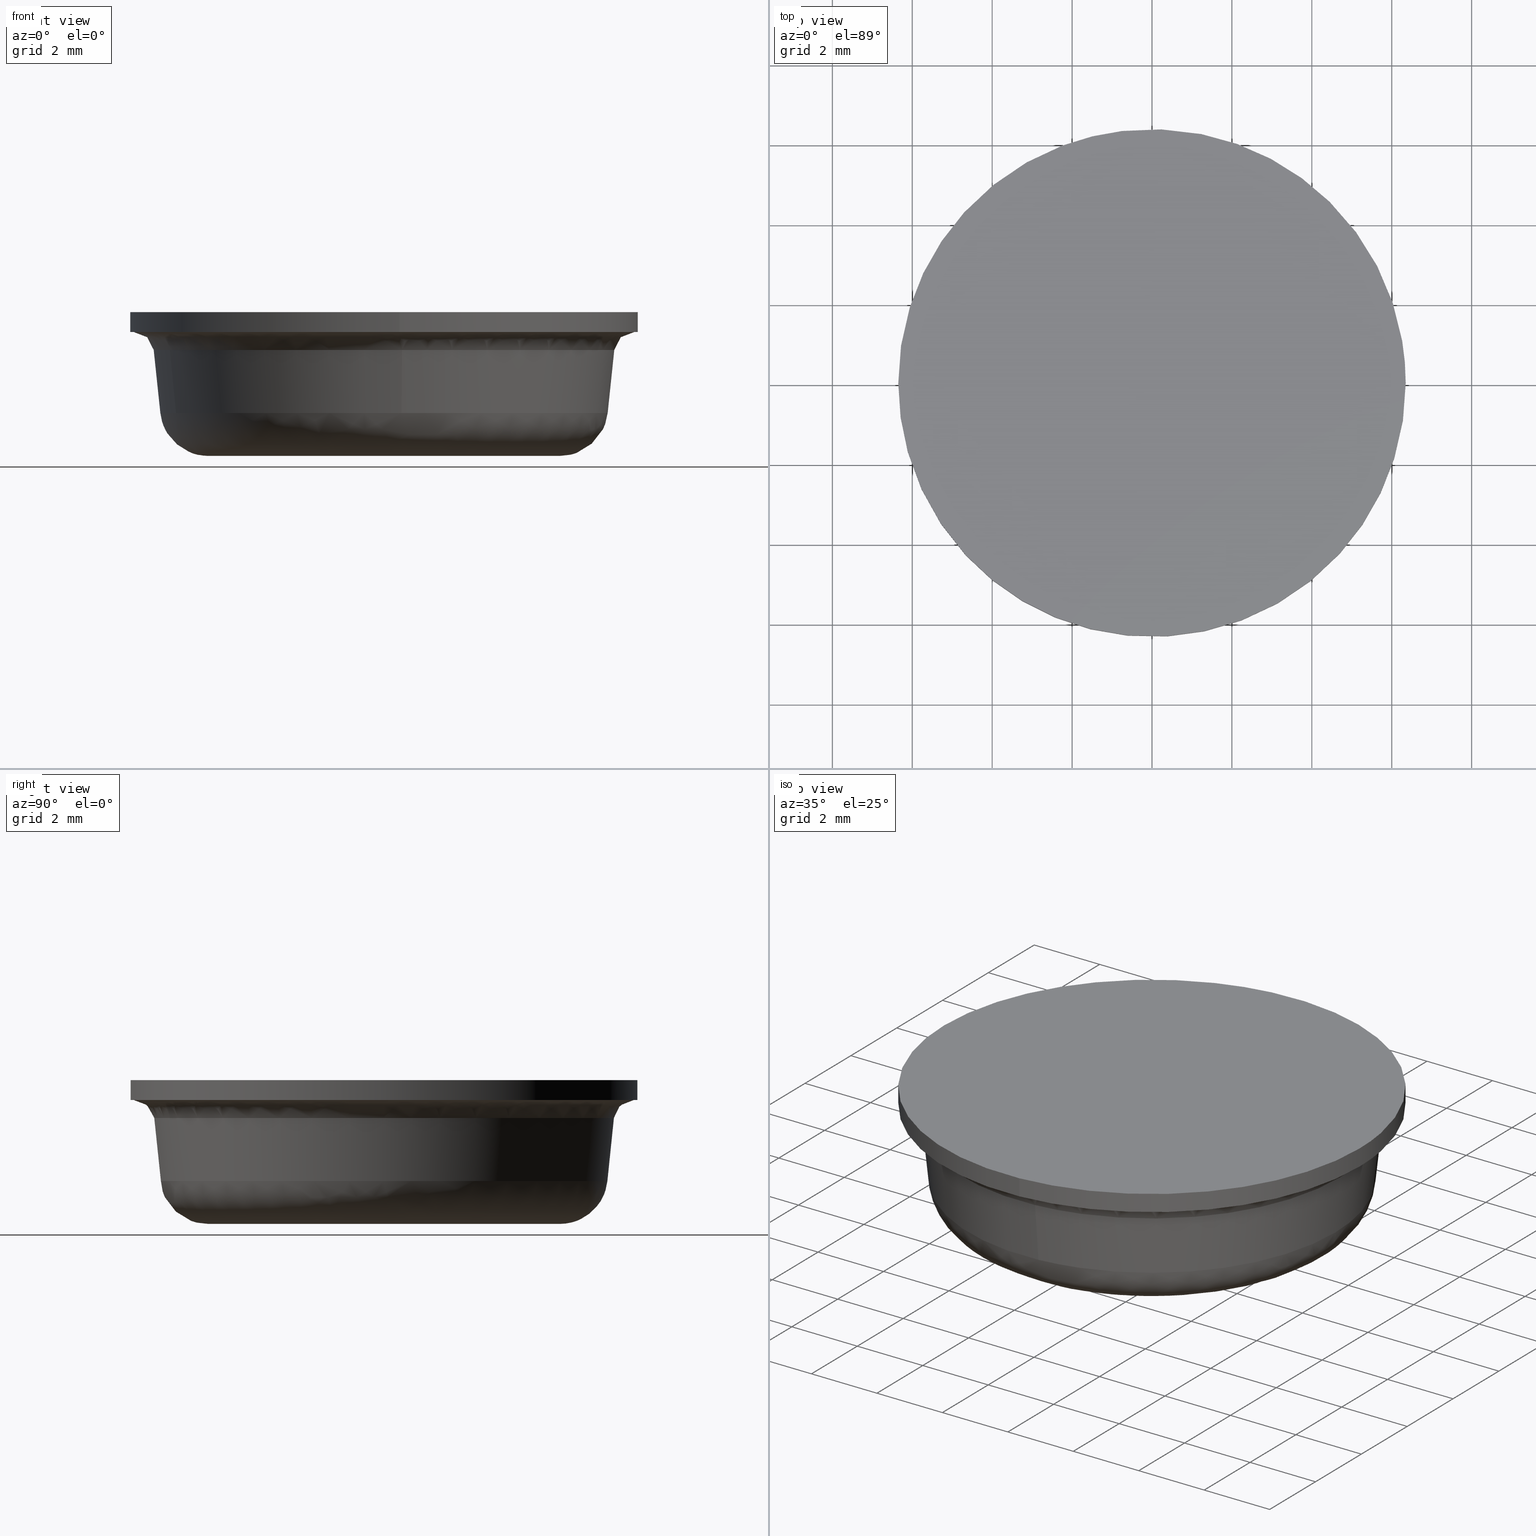
[diagram: canonical four-view strip — front | top / right | iso, engineering-drawing reading convention]
A machine part, canonical four-view strip (front | top / right | iso — engineering-drawing reading convention). The complete STEP part file that produces these views, byte-faithful:
ISO-10303-21;
HEADER;
/****************************************************************
 * Generated by software with PDE/Lib inside                    *
 * PDElib Version 4.4.1-0003, patched  Thursday August 19 11:58 *
 * International Technegroup Inc. (www.iti-oh.com)              *
 ****************************************************************/
FILE_DESCRIPTION((''),'2;1');
FILE_NAME('','2005-12-14T15:43:59',(''),(''),'','CADfix','');
FILE_SCHEMA(('AUTOMOTIVE_DESIGN'));
ENDSEC;
DATA;
#5=APPLICATION_CONTEXT('automotive design');
#6=APPLICATION_PROTOCOL_DEFINITION('Draft International Standard','automotive_design',1998,#5);
#7=PRODUCT_CONTEXT('None',#5,'mechanical');
#8=PRODUCT('rubber foot','','None',(#7));
#9=PRODUCT_RELATED_PRODUCT_CATEGORY('part','description',(#8));
#10=PRODUCT_DEFINITION_FORMATION('None','None',#8);
#11=PRODUCT_DEFINITION_CONTEXT('part definition',#5,'design');
#12=PRODUCT_DEFINITION('None','None',#10,#11);
#18=(NAMED_UNIT(*)PLANE_ANGLE_UNIT()SI_UNIT($,.RADIAN.));
#19=DIMENSIONAL_EXPONENTS(0.0,0.0,0.0,0.0,0.0,0.0,0.0);
#20=PLANE_ANGLE_MEASURE_WITH_UNIT(PLANE_ANGLE_MEASURE(0.017453292500000),#18);
#24=(CONVERSION_BASED_UNIT('DEGREE',#20)NAMED_UNIT(#19)PLANE_ANGLE_UNIT());
#28=(NAMED_UNIT(*)SI_UNIT($,.STERADIAN.)SOLID_ANGLE_UNIT());
#32=(LENGTH_UNIT()NAMED_UNIT(*)SI_UNIT(.MILLI.,.METRE.));
#34=UNCERTAINTY_MEASURE_WITH_UNIT(LENGTH_MEASURE(0.001000000000000),#32,'DISTANCE_ACCURACY_VALUE','');
#36=(GEOMETRIC_REPRESENTATION_CONTEXT(3)GLOBAL_UNCERTAINTY_ASSIGNED_CONTEXT((#34))GLOBAL_UNIT_ASSIGNED_CONTEXT((#24,#28,#32))REPRESENTATION_CONTEXT('None','None'));
#37=AXIS2_PLACEMENT_3D('',#38,#39,#40);
#38=CARTESIAN_POINT('',(0.0,0.0,0.0));
#39=DIRECTION('',(0.0,0.0,1.0));
#40=DIRECTION('',(1.0,0.0,0.0));
#41=ADVANCED_BREP_SHAPE_REPRESENTATION('',(#37,#831),#36);
#42=PRODUCT_DEFINITION_SHAPE('','',#12);
#43=SHAPE_DEFINITION_REPRESENTATION(#42,#41);
#44=CARTESIAN_POINT('',(-0.749517390070416,6.305610492409281,3.612500000000001));
#45=CARTESIAN_POINT('',(-0.569053526851158,6.327061358098645,3.612500000000001));
#46=CARTESIAN_POINT('',(-0.387658226046342,6.338155969978853,3.612500000000001));
#47=CARTESIAN_POINT('',(5.950497743932512,6.725814196025195,3.612500000000002));
#48=CARTESIAN_POINT('',(6.338155969978853,0.387658226046342,3.612500000000001));
#49=CARTESIAN_POINT('',(6.725814196025195,-5.950497743932512,3.612500000000002));
#50=CARTESIAN_POINT('',(0.387658226046342,-6.338155969978853,3.612500000000001));
#51=CARTESIAN_POINT('',(-0.749517390070416,6.305610492409281,3.087187500000001));
#52=CARTESIAN_POINT('',(-0.569053526851158,6.327061358098645,3.087187500000001));
#53=CARTESIAN_POINT('',(-0.387658226046342,6.338155969978853,3.087187500000000));
#54=CARTESIAN_POINT('',(5.950497743932512,6.725814196025195,3.087187500000000));
#55=CARTESIAN_POINT('',(6.338155969978853,0.387658226046342,3.087187500000000));
#56=CARTESIAN_POINT('',(6.725814196025195,-5.950497743932512,3.087187500000000));
#57=CARTESIAN_POINT('',(0.387658226046342,-6.338155969978853,3.087187500000000));
#65=(BOUNDED_SURFACE()B_SPLINE_SURFACE(2,1,((#44,#51),(#45,#52),(#46,#53),(#47,#54),(#48,#55),(#49,#56),(#50,#57)),.UNSPECIFIED.,.F.,.F.,.U.)B_SPLINE_SURFACE_WITH_KNOTS((3,2,2,3),(2,2),(0.0,0.420840979371065,10.941865463647680,21.462889947924289),(0.0,1.0),.UNSPECIFIED.)GEOMETRIC_REPRESENTATION_ITEM()RATIONAL_B_SPLINE_SURFACE(((0.977505800795127,0.977505800795127),(0.988284271247462,0.988284271247462),(1.0,1.0),(0.707106781186548,0.707106781186548),(1.0,1.0),(0.707106781186548,0.707106781186548),(1.0,1.0)))REPRESENTATION_ITEM('')SURFACE());
#66=CARTESIAN_POINT('',(-0.749513375861459,6.305610969556273,3.599999999999921));
#67=VERTEX_POINT('',#66);
#68=CARTESIAN_POINT('',(6.350000000000000,0.0,3.600000000000000));
#69=VERTEX_POINT('',#68);
#70=CARTESIAN_POINT('',(-0.749513375861459,6.305610969556273,3.599999999999921));
#71=CARTESIAN_POINT('',(-0.376071131466490,6.350000000000000,3.600000000000001));
#72=CARTESIAN_POINT('',(0.0,6.350000000000000,3.600000000000000));
#73=CARTESIAN_POINT('',(6.350000000000000,6.350000000000000,3.600000000000000));
#74=CARTESIAN_POINT('',(6.350000000000000,0.0,3.600000000000000));
#82=(BOUNDED_CURVE()B_SPLINE_CURVE(2,(#70,#71,#72,#73,#74),.UNSPECIFIED.,.F.,.U.)B_SPLINE_CURVE_WITH_KNOTS((3,2,3),(0.229562581104653,0.250000000000000,0.500000000000000),.UNSPECIFIED.)CURVE()GEOMETRIC_REPRESENTATION_ITEM()RATIONAL_B_SPLINE_CURVE((0.956026965066855,0.976056074382012,1.0,0.707106781186547,1.0))REPRESENTATION_ITEM(''));
#83=EDGE_CURVE('',#67,#69,#82,.T.);
#84=ORIENTED_EDGE('',*,*,#83,.T.);
#85=CARTESIAN_POINT('',(0.387655958614094,-6.338156108660137,3.599999999999948));
#86=VERTEX_POINT('',#85);
#87=CARTESIAN_POINT('',(6.350000000000000,0.0,3.600000000000000));
#88=CARTESIAN_POINT('',(6.349999999999999,-5.973485665817968,3.600000000000000));
#89=CARTESIAN_POINT('',(0.387655958614094,-6.338156108660137,3.599999999999948));
#97=(BOUNDED_CURVE()B_SPLINE_CURVE(2,(#87,#88,#89),.UNSPECIFIED.,.F.,.U.)B_SPLINE_CURVE_WITH_KNOTS((3,3),(0.500000000000000,0.739333023969413),.UNSPECIFIED.)CURVE()GEOMETRIC_REPRESENTATION_ITEM()RATIONAL_B_SPLINE_CURVE((1.0,0.719603920964966,0.976072173966902))REPRESENTATION_ITEM(''));
#98=EDGE_CURVE('',#69,#86,#97,.T.);
#99=ORIENTED_EDGE('',*,*,#98,.T.);
#100=CARTESIAN_POINT('',(0.387655985912206,-6.338156106990533,3.100000000000000));
#101=VERTEX_POINT('',#100);
#102=CARTESIAN_POINT('',(0.387655958614094,-6.338156108660137,3.599999999999948));
#103=CARTESIAN_POINT('',(0.387655985912206,-6.338156106990533,3.100000000000000));
#104=QUASI_UNIFORM_CURVE('',1,(#102,#103),.UNSPECIFIED.,.F.,.U.);
#105=EDGE_CURVE('',#86,#101,#104,.T.);
#106=ORIENTED_EDGE('',*,*,#105,.T.);
#107=CARTESIAN_POINT('',(6.350000000000000,0.0,3.100000000000000));
#108=VERTEX_POINT('',#107);
#109=CARTESIAN_POINT('',(6.350000000000000,0.0,3.100000000000000));
#110=CARTESIAN_POINT('',(6.349999999999999,-5.973485640042394,3.100000000000001));
#111=CARTESIAN_POINT('',(0.387655985912206,-6.338156106990533,3.100000000000000));
#119=(BOUNDED_CURVE()B_SPLINE_CURVE(2,(#109,#110,#111),.UNSPECIFIED.,.F.,.U.)B_SPLINE_CURVE_WITH_KNOTS((3,3),(0.500000000000000,0.739333023226263),.UNSPECIFIED.)CURVE()GEOMETRIC_REPRESENTATION_ITEM()RATIONAL_B_SPLINE_CURVE((1.0,0.719603921835620,0.976072172374189))REPRESENTATION_ITEM(''));
#120=EDGE_CURVE('',#108,#101,#119,.T.);
#121=ORIENTED_EDGE('',*,*,#120,.F.);
#122=CARTESIAN_POINT('',(-0.749513424211019,6.305610963809257,3.100000000000000));
#123=VERTEX_POINT('',#122);
#124=CARTESIAN_POINT('',(-0.749513424211019,6.305610963809257,3.100000000000000));
#125=CARTESIAN_POINT('',(-0.376071155896838,6.350000000000000,3.100000000000000));
#126=CARTESIAN_POINT('',(0.0,6.350000000000000,3.100000000000000));
#127=CARTESIAN_POINT('',(6.350000000000000,6.350000000000000,3.100000000000000));
#128=CARTESIAN_POINT('',(6.350000000000000,0.0,3.100000000000000));
#136=(BOUNDED_CURVE()B_SPLINE_CURVE(2,(#124,#125,#126,#127,#128),.UNSPECIFIED.,.F.,.U.)B_SPLINE_CURVE_WITH_KNOTS((3,2,3),(0.229562579808786,0.250000000000000,0.500000000000000),.UNSPECIFIED.)CURVE()GEOMETRIC_REPRESENTATION_ITEM()RATIONAL_B_SPLINE_CURVE((0.956026962526900,0.976056072863809,1.0,0.707106781186547,1.0))REPRESENTATION_ITEM(''));
#137=EDGE_CURVE('',#123,#108,#136,.T.);
#138=ORIENTED_EDGE('',*,*,#137,.F.);
#139=CARTESIAN_POINT('',(-0.749513375861459,6.305610969556273,3.599999999999921));
#140=CARTESIAN_POINT('',(-0.749513424211019,6.305610963809257,3.100000000000000));
#141=QUASI_UNIFORM_CURVE('',1,(#139,#140),.UNSPECIFIED.,.F.,.U.);
#142=EDGE_CURVE('',#67,#123,#141,.T.);
#143=ORIENTED_EDGE('',*,*,#142,.F.);
#144=EDGE_LOOP('',(#84,#99,#106,#121,#138,#143));
#145=FACE_OUTER_BOUND('',#144,.T.);
#146=ADVANCED_FACE('',(#145),#65,.T.);
#147=CARTESIAN_POINT('',(0.387658226046342,-6.338155969978853,3.612500000000001));
#148=CARTESIAN_POINT('',(-5.950497743932512,-6.725814196025195,3.612500000000002));
#149=CARTESIAN_POINT('',(-6.338155969978853,-0.387658226046342,3.612500000000001));
#150=CARTESIAN_POINT('',(-6.704242349251549,5.597801166830830,3.612500000000002));
#151=CARTESIAN_POINT('',(-0.749517390070416,6.305610492409281,3.612500000000001));
#152=CARTESIAN_POINT('',(0.387658226046342,-6.338155969978853,3.087187500000000));
#153=CARTESIAN_POINT('',(-5.950497743932512,-6.725814196025195,3.087187500000000));
#154=CARTESIAN_POINT('',(-6.338155969978853,-0.387658226046342,3.087187500000000));
#155=CARTESIAN_POINT('',(-6.704242349251549,5.597801166830830,3.087187500000000));
#156=CARTESIAN_POINT('',(-0.749517390070416,6.305610492409281,3.087187500000001));
#164=(BOUNDED_SURFACE()B_SPLINE_SURFACE(2,1,((#147,#152),(#148,#153),(#149,#154),(#150,#155),(#151,#156)),.UNSPECIFIED.,.F.,.F.,.U.)B_SPLINE_SURFACE_WITH_KNOTS((3,2,3),(2,2),(0.0,10.521024484276611,20.621207989182160),(0.0,1.0),.UNSPECIFIED.)GEOMETRIC_REPRESENTATION_ITEM()RATIONAL_B_SPLINE_SURFACE(((1.0,1.0),(0.707106781186548,0.707106781186548),(1.0,1.0),(0.718822509939086,0.718822509939086),(0.977505800795127,0.977505800795127)))REPRESENTATION_ITEM('')SURFACE());
#165=CARTESIAN_POINT('',(-6.350000000000000,0.0,3.600000000000000));
#166=VERTEX_POINT('',#165);
#167=CARTESIAN_POINT('',(-6.350000000000000,0.0,3.600000000000000));
#168=CARTESIAN_POINT('',(-6.350000000000001,5.639911855484185,3.599999999999999));
#169=CARTESIAN_POINT('',(-0.749513375861459,6.305610969556273,3.599999999999921));
#177=(BOUNDED_CURVE()B_SPLINE_CURVE(2,(#167,#168,#169),.UNSPECIFIED.,.F.,.U.)B_SPLINE_CURVE_WITH_KNOTS((3,3),(0.0,0.229562581104653),.UNSPECIFIED.)CURVE()GEOMETRIC_REPRESENTATION_ITEM()RATIONAL_B_SPLINE_CURVE((1.0,0.731050706804535,0.956026965066855))REPRESENTATION_ITEM(''));
#178=EDGE_CURVE('',#166,#67,#177,.T.);
#179=ORIENTED_EDGE('',*,*,#178,.T.);
#180=ORIENTED_EDGE('',*,*,#142,.T.);
#181=CARTESIAN_POINT('',(-6.350000000000000,0.0,3.100000000000000));
#182=VERTEX_POINT('',#181);
#183=CARTESIAN_POINT('',(-6.350000000000000,0.0,3.100000000000000));
#184=CARTESIAN_POINT('',(-6.350000000000001,5.639911811934584,3.100000000000000));
#185=CARTESIAN_POINT('',(-0.749513424211019,6.305610963809257,3.100000000000000));
#193=(BOUNDED_CURVE()B_SPLINE_CURVE(2,(#183,#184,#185),.UNSPECIFIED.,.F.,.U.)B_SPLINE_CURVE_WITH_KNOTS((3,3),(0.0,0.229562579808786),.UNSPECIFIED.)CURVE()GEOMETRIC_REPRESENTATION_ITEM()RATIONAL_B_SPLINE_CURVE((1.0,0.731050708322738,0.956026962526900))REPRESENTATION_ITEM(''));
#194=EDGE_CURVE('',#182,#123,#193,.T.);
#195=ORIENTED_EDGE('',*,*,#194,.F.);
#196=CARTESIAN_POINT('',(0.387655985912206,-6.338156106990533,3.100000000000000));
#197=CARTESIAN_POINT('',(0.194008923738444,-6.350000000000000,3.100000000000001));
#198=CARTESIAN_POINT('',(0.0,-6.350000000000000,3.100000000000000));
#199=CARTESIAN_POINT('',(-6.350000000000000,-6.350000000000000,3.100000000000000));
#200=CARTESIAN_POINT('',(-6.350000000000000,0.0,3.100000000000000));
#208=(BOUNDED_CURVE()B_SPLINE_CURVE(2,(#196,#197,#198,#199,#200),.UNSPECIFIED.,.F.,.U.)B_SPLINE_CURVE_WITH_KNOTS((3,2,3),(0.739333023226263,0.750000000000000,1.0),.UNSPECIFIED.)CURVE()GEOMETRIC_REPRESENTATION_ITEM()RATIONAL_B_SPLINE_CURVE((0.976072172374189,0.987502859350927,1.0,0.707106781186547,1.0))REPRESENTATION_ITEM(''));
#209=EDGE_CURVE('',#101,#182,#208,.T.);
#210=ORIENTED_EDGE('',*,*,#209,.F.);
#211=ORIENTED_EDGE('',*,*,#105,.F.);
#212=CARTESIAN_POINT('',(0.387655958614094,-6.338156108660137,3.599999999999948));
#213=CARTESIAN_POINT('',(0.194008910051117,-6.350000000000001,3.600000000000000));
#214=CARTESIAN_POINT('',(0.0,-6.350000000000000,3.600000000000000));
#215=CARTESIAN_POINT('',(-6.350000000000000,-6.350000000000000,3.600000000000000));
#216=CARTESIAN_POINT('',(-6.350000000000000,0.0,3.600000000000000));
#224=(BOUNDED_CURVE()B_SPLINE_CURVE(2,(#212,#213,#214,#215,#216),.UNSPECIFIED.,.F.,.U.)B_SPLINE_CURVE_WITH_KNOTS((3,2,3),(0.739333023969413,0.750000000000000,1.0),.UNSPECIFIED.)CURVE()GEOMETRIC_REPRESENTATION_ITEM()RATIONAL_B_SPLINE_CURVE((0.976072173966902,0.987502860221582,1.0,0.707106781186547,1.0))REPRESENTATION_ITEM(''));
#225=EDGE_CURVE('',#86,#166,#224,.T.);
#226=ORIENTED_EDGE('',*,*,#225,.T.);
#227=EDGE_LOOP('',(#179,#180,#195,#210,#211,#226));
#228=FACE_OUTER_BOUND('',#227,.T.);
#229=ADVANCED_FACE('',(#228),#164,.T.);
#230=CARTESIAN_POINT('',(-5.201497614417154,-2.057981043865503,1.035123186351243));
#231=CARTESIAN_POINT('',(-3.681069193811247,-5.900827325782242,1.035123186351243));
#232=CARTESIAN_POINT('',(0.438886347921793,-5.576579792606306,1.035123186351243));
#233=CARTESIAN_POINT('',(-5.363496340887895,-2.122076105119221,2.692692757804774));
#234=CARTESIAN_POINT('',(-3.795714737393780,-6.084606418413349,2.692692757804775));
#235=CARTESIAN_POINT('',(0.452555301500020,-5.750260315300521,2.692692757804776));
#243=(BOUNDED_SURFACE()B_SPLINE_SURFACE(2,1,((#230,#233),(#231,#234),(#232,#235)),.UNSPECIFIED.,.F.,.F.,.U.)B_SPLINE_SURFACE_WITH_KNOTS((3,3),(2,2),(0.0,7.593330558057930),(0.0,1.0),.UNSPECIFIED.)GEOMETRIC_REPRESENTATION_ITEM()RATIONAL_B_SPLINE_SURFACE(((0.906274169979695,0.906274169979695),(0.765685424949238,0.765685424949238),(1.0,1.0)))REPRESENTATION_ITEM('')SURFACE());
#244=CARTESIAN_POINT('',(0.439207102130143,-5.580712803678572,1.074564380823434));
#245=VERTEX_POINT('',#244);
#246=CARTESIAN_POINT('',(-5.205353386921967,-2.059503371275750,1.074564162696577));
#247=VERTEX_POINT('',#246);
#248=CARTESIAN_POINT('',(0.439207102130142,-5.580712803678572,1.074564380823434));
#249=CARTESIAN_POINT('',(0.219942547773884,-5.597969123065714,1.074564375023362));
#250=CARTESIAN_POINT('',(-1.954018E-009,-5.597969125184395,1.074564368904969));
#251=CARTESIAN_POINT('',(-3.805355849520708,-5.597969161840955,1.074564263047052));
#252=CARTESIAN_POINT('',(-5.205353386921967,-2.059503371275750,1.074564162696577));
#260=(BOUNDED_CURVE()B_SPLINE_CURVE(2,(#248,#249,#250,#251,#252),.UNSPECIFIED.,.F.,.U.)B_SPLINE_CURVE_WITH_KNOTS((3,2,3),(0.736331438645305,0.750000000000000,0.937532633986745),.UNSPECIFIED.)CURVE()GEOMETRIC_REPRESENTATION_ITEM()RATIONAL_B_SPLINE_CURVE((0.969723644193632,0.983986284273097,1.0,0.780291852796229,0.890203286020223))REPRESENTATION_ITEM(''));
#261=EDGE_CURVE('',#245,#247,#260,.T.);
#262=ORIENTED_EDGE('',*,*,#261,.F.);
#263=CARTESIAN_POINT('',(0.452221912391857,-5.746024204986665,2.652264231634147));
#264=VERTEX_POINT('',#263);
#265=CARTESIAN_POINT('',(0.439207102130143,-5.580712803678572,1.074564380823434));
#266=CARTESIAN_POINT('',(0.452221912391857,-5.746024204986665,2.652264231634147));
#267=QUASI_UNIFORM_CURVE('',1,(#265,#266),.UNSPECIFIED.,.F.,.U.);
#268=EDGE_CURVE('',#245,#264,#267,.T.);
#269=ORIENTED_EDGE('',*,*,#268,.T.);
#270=CARTESIAN_POINT('',(-5.359545755899575,-2.120511014295906,2.652263281644852));
#271=VERTEX_POINT('',#270);
#272=CARTESIAN_POINT('',(0.452221912391857,-5.746024204986665,2.652264231634146));
#273=CARTESIAN_POINT('',(0.226460006509275,-5.763792052315869,2.652264231633806));
#274=CARTESIAN_POINT('',(0.0,-5.763792052315869,2.652264231633805));
#275=CARTESIAN_POINT('',(-3.918077141644606,-5.763792052315869,2.652264231633805));
#276=CARTESIAN_POINT('',(-5.359545755899575,-2.120511014295907,2.652263281644852));
#284=(BOUNDED_CURVE()B_SPLINE_CURVE(2,(#272,#273,#274,#275,#276),.UNSPECIFIED.,.F.,.U.)B_SPLINE_CURVE_WITH_KNOTS((3,2,3),(0.736331300632539,0.750000000000000,0.937532601614025),.UNSPECIFIED.)CURVE()GEOMETRIC_REPRESENTATION_ITEM()RATIONAL_B_SPLINE_CURVE((0.969723356171341,0.983986122581084,1.0,0.780291890723230,0.890203248073429))REPRESENTATION_ITEM(''));
#285=EDGE_CURVE('',#264,#271,#284,.T.);
#286=ORIENTED_EDGE('',*,*,#285,.T.);
#287=CARTESIAN_POINT('',(-5.205353386921967,-2.059503371275750,1.074564162696577));
#288=CARTESIAN_POINT('',(-5.359545755899575,-2.120511014295906,2.652263281644852));
#289=QUASI_UNIFORM_CURVE('',1,(#287,#288),.UNSPECIFIED.,.F.,.U.);
#290=EDGE_CURVE('',#247,#271,#289,.T.);
#291=ORIENTED_EDGE('',*,*,#290,.F.);
#292=EDGE_LOOP('',(#262,#269,#286,#291));
#293=FACE_OUTER_BOUND('',#292,.T.);
#294=ADVANCED_FACE('',(#293),#243,.T.);
#295=CARTESIAN_POINT('',(0.438886347921793,-5.576579792606306,1.035123186351243));
#296=CARTESIAN_POINT('',(6.015466140528099,-5.137693444684512,1.035123186351243));
#297=CARTESIAN_POINT('',(5.576579792606306,0.438886347921793,1.035123186351243));
#298=CARTESIAN_POINT('',(5.137693444684512,6.015466140528099,1.035123186351243));
#299=CARTESIAN_POINT('',(-0.438886347921793,5.576579792606306,1.035123186351243));
#300=CARTESIAN_POINT('',(-6.015466140528099,5.137693444684512,1.035123186351243));
#301=CARTESIAN_POINT('',(-5.576579792606306,-0.438886347921793,1.035123186351243));
#302=CARTESIAN_POINT('',(-5.510649800530054,-1.276606325497019,1.035123186351243));
#303=CARTESIAN_POINT('',(-5.201497614417154,-2.057981043865503,1.035123186351243));
#304=CARTESIAN_POINT('',(0.452555301500020,-5.750260315300521,2.692692757804776));
#305=CARTESIAN_POINT('',(6.202815616800540,-5.297705013800501,2.692692757804776));
#306=CARTESIAN_POINT('',(5.750260315300521,0.452555301500020,2.692692757804776));
#307=CARTESIAN_POINT('',(5.297705013800501,6.202815616800540,2.692692757804776));
#308=CARTESIAN_POINT('',(-0.452555301500020,5.750260315300521,2.692692757804776));
#309=CARTESIAN_POINT('',(-6.202815616800540,5.297705013800501,2.692692757804776));
#310=CARTESIAN_POINT('',(-5.750260315300521,-0.452555301500020,2.692692757804776));
#311=CARTESIAN_POINT('',(-5.682276957915983,-1.316365759080492,2.692692757804775));
#312=CARTESIAN_POINT('',(-5.363496340887895,-2.122076105119221,2.692692757804774));
#320=(BOUNDED_SURFACE()B_SPLINE_SURFACE(2,1,((#295,#304),(#296,#305),(#297,#306),(#298,#307),(#299,#308),(#300,#309),(#301,#310),(#302,#311),(#303,#312)),.UNSPECIFIED.,.F.,.F.,.U.)B_SPLINE_SURFACE_WITH_KNOTS((3,2,2,2,3),(2,2),(0.0,9.556803675402344,19.113607350804688,28.670411026207031,30.581771761287499),(0.0,1.0),.UNSPECIFIED.)GEOMETRIC_REPRESENTATION_ITEM()RATIONAL_B_SPLINE_SURFACE(((1.0,1.0),(0.707106781186548,0.707106781186548),(1.0,1.0),(0.707106781186548,0.707106781186548),(1.0,1.0),(0.707106781186548,0.707106781186548),(1.0,1.0),(0.941421356237310,0.941421356237310),(0.906274169979695,0.906274169979695)))REPRESENTATION_ITEM('')SURFACE());
#321=CARTESIAN_POINT('',(-5.597969254135790,0.0,1.074565650878980));
#322=VERTEX_POINT('',#321);
#323=CARTESIAN_POINT('',(-5.205353386921967,-2.059503371275750,1.074564162696577));
#324=CARTESIAN_POINT('',(-5.597969181413372,-1.067175052558030,1.074564906787779));
#325=CARTESIAN_POINT('',(-5.597969254135790,0.0,1.074565650878980));
#333=(BOUNDED_CURVE()B_SPLINE_CURVE(2,(#323,#324,#325),.UNSPECIFIED.,.F.,.U.)B_SPLINE_CURVE_WITH_KNOTS((3,3),(0.937532633986745,1.0),.UNSPECIFIED.)CURVE()GEOMETRIC_REPRESENTATION_ITEM()RATIONAL_B_SPLINE_CURVE((0.890203286020223,0.926814928390319,1.0))REPRESENTATION_ITEM(''));
#334=EDGE_CURVE('',#247,#322,#333,.T.);
#335=ORIENTED_EDGE('',*,*,#334,.F.);
#336=ORIENTED_EDGE('',*,*,#290,.T.);
#337=CARTESIAN_POINT('',(-5.763792052315869,0.0,2.652264231633805));
#338=VERTEX_POINT('',#337);
#339=CARTESIAN_POINT('',(-5.359545755899575,-2.120511014295907,2.652263281644852));
#340=CARTESIAN_POINT('',(-5.763792052315869,-1.098787508883521,2.652264231633805));
#341=CARTESIAN_POINT('',(-5.763792052315869,0.0,2.652264231633805));
#349=(BOUNDED_CURVE()B_SPLINE_CURVE(2,(#339,#340,#341),.UNSPECIFIED.,.F.,.U.)B_SPLINE_CURVE_WITH_KNOTS((3,3),(0.937532601614025,1.0),.UNSPECIFIED.)CURVE()GEOMETRIC_REPRESENTATION_ITEM()RATIONAL_B_SPLINE_CURVE((0.890203248073429,0.926814890463318,1.0))REPRESENTATION_ITEM(''));
#350=EDGE_CURVE('',#271,#338,#349,.T.);
#351=ORIENTED_EDGE('',*,*,#350,.T.);
#352=CARTESIAN_POINT('',(-5.734690764123986,0.578464054420458,2.652264231671762));
#353=VERTEX_POINT('',#352);
#354=CARTESIAN_POINT('',(-5.763792052315869,0.0,2.652264231633805));
#355=CARTESIAN_POINT('',(-5.763792052315870,0.289964038966353,2.652264231633805));
#356=CARTESIAN_POINT('',(-5.734690764123987,0.578464054420459,2.652264231671762));
#364=(BOUNDED_CURVE()B_SPLINE_CURVE(2,(#354,#355,#356),.UNSPECIFIED.,.F.,.U.)B_SPLINE_CURVE_WITH_KNOTS((3,3),(0.0,0.017423441082362),.UNSPECIFIED.)CURVE()GEOMETRIC_REPRESENTATION_ITEM()RATIONAL_B_SPLINE_CURVE((1.0,0.979587169034322,0.962019632129881))REPRESENTATION_ITEM(''));
#365=EDGE_CURVE('',#338,#353,#364,.T.);
#366=ORIENTED_EDGE('',*,*,#365,.T.);
#367=CARTESIAN_POINT('',(1.236746727380552,5.629543174600428,2.652264231664552));
#368=VERTEX_POINT('',#367);
#369=CARTESIAN_POINT('',(-5.734690764123987,0.578464054420459,2.652264231671762));
#370=CARTESIAN_POINT('',(-5.211641487261411,5.763792052315870,2.652264231633804));
#371=CARTESIAN_POINT('',(0.0,5.763792052315869,2.652264231633805));
#372=CARTESIAN_POINT('',(0.625659722639259,5.763792052315869,2.652264231633805));
#373=CARTESIAN_POINT('',(1.236746727380552,5.629543174600428,2.652264231664551));
#381=(BOUNDED_CURVE()B_SPLINE_CURVE(2,(#369,#370,#371,#372,#373),.UNSPECIFIED.,.F.,.U.)B_SPLINE_CURVE_WITH_KNOTS((3,2,3),(0.017423441082362,0.250000000000000,0.286726879777792),.UNSPECIFIED.)CURVE()GEOMETRIC_REPRESENTATION_ITEM()RATIONAL_B_SPLINE_CURVE((0.962019632129881,0.727519612152226,1.0,0.956971783859631,0.926585904689183))REPRESENTATION_ITEM(''));
#382=EDGE_CURVE('',#353,#368,#381,.T.);
#383=ORIENTED_EDGE('',*,*,#382,.T.);
#384=CARTESIAN_POINT('',(5.763792052315869,0.0,2.652264231633805));
#385=VERTEX_POINT('',#384);
#386=CARTESIAN_POINT('',(1.236746727380552,5.629543174600428,2.652264231664551));
#387=CARTESIAN_POINT('',(5.763792052315870,4.635002708936676,2.652264231633806));
#388=CARTESIAN_POINT('',(5.763792052315869,0.0,2.652264231633805));
#396=(BOUNDED_CURVE()B_SPLINE_CURVE(2,(#386,#387,#388),.UNSPECIFIED.,.F.,.U.)B_SPLINE_CURVE_WITH_KNOTS((3,3),(0.286726879777792,0.500000000000000),.UNSPECIFIED.)CURVE()GEOMETRIC_REPRESENTATION_ITEM()RATIONAL_B_SPLINE_CURVE((0.926585904689183,0.750134997326917,1.0))REPRESENTATION_ITEM(''));
#397=EDGE_CURVE('',#368,#385,#396,.T.);
#398=ORIENTED_EDGE('',*,*,#397,.T.);
#399=CARTESIAN_POINT('',(5.763792052315869,0.0,2.652264231633805));
#400=CARTESIAN_POINT('',(5.763792052315871,-5.327994569048848,2.652264231633806));
#401=CARTESIAN_POINT('',(0.452221912391857,-5.746024204986665,2.652264231634146));
#409=(BOUNDED_CURVE()B_SPLINE_CURVE(2,(#399,#400,#401),.UNSPECIFIED.,.F.,.U.)B_SPLINE_CURVE_WITH_KNOTS((3,3),(0.500000000000000,0.736331300632540),.UNSPECIFIED.)CURVE()GEOMETRIC_REPRESENTATION_ITEM()RATIONAL_B_SPLINE_CURVE((1.0,0.723120658605463,0.969723356171341))REPRESENTATION_ITEM(''));
#410=EDGE_CURVE('',#385,#264,#409,.T.);
#411=ORIENTED_EDGE('',*,*,#410,.T.);
#412=ORIENTED_EDGE('',*,*,#268,.F.);
#413=CARTESIAN_POINT('',(5.597969254135790,0.0,1.074565650878980));
#414=VERTEX_POINT('',#413);
#415=CARTESIAN_POINT('',(5.597969254135790,0.0,1.074565650878980));
#416=CARTESIAN_POINT('',(5.597969248899088,-5.174713663581082,1.074565015851207));
#417=CARTESIAN_POINT('',(0.439207102130142,-5.580712803678572,1.074564380823434));
#425=(BOUNDED_CURVE()B_SPLINE_CURVE(2,(#415,#416,#417),.UNSPECIFIED.,.F.,.U.)B_SPLINE_CURVE_WITH_KNOTS((3,3),(0.500000000000000,0.736331438645305),.UNSPECIFIED.)CURVE()GEOMETRIC_REPRESENTATION_ITEM()RATIONAL_B_SPLINE_CURVE((1.0,0.723120496913451,0.969723644193632))REPRESENTATION_ITEM(''));
#426=EDGE_CURVE('',#414,#245,#425,.T.);
#427=ORIENTED_EDGE('',*,*,#426,.F.);
#428=CARTESIAN_POINT('',(0.172060482457668,5.595324383859992,1.074565650872323));
#429=VERTEX_POINT('',#428);
#430=CARTESIAN_POINT('',(0.172060482457668,5.595324383859992,1.074565650872324));
#431=CARTESIAN_POINT('',(5.597969254135790,5.428473560390438,1.074565650878980));
#432=CARTESIAN_POINT('',(5.597969254135790,0.0,1.074565650878980));
#440=(BOUNDED_CURVE()B_SPLINE_CURVE(2,(#430,#431,#432),.UNSPECIFIED.,.F.,.U.)B_SPLINE_CURVE_WITH_KNOTS((3,3),(0.255400348391136,0.500000000000000),.UNSPECIFIED.)CURVE()GEOMETRIC_REPRESENTATION_ITEM()RATIONAL_B_SPLINE_CURVE((0.987619536403035,0.713433682878522,1.0))REPRESENTATION_ITEM(''));
#441=EDGE_CURVE('',#429,#414,#440,.T.);
#442=ORIENTED_EDGE('',*,*,#441,.F.);
#443=CARTESIAN_POINT('',(-5.576325316993973,0.491788297230194,1.074565650871256));
#444=VERTEX_POINT('',#443);
#445=CARTESIAN_POINT('',(-5.576325316993973,0.491788297230194,1.074565650871256));
#446=CARTESIAN_POINT('',(-5.126000076734167,5.597969254135789,1.074565650878980));
#447=CARTESIAN_POINT('',(0.0,5.597969254135790,1.074565650878980));
#448=CARTESIAN_POINT('',(0.086050569368109,5.597969254135790,1.074565650878980));
#449=CARTESIAN_POINT('',(0.172060482457668,5.595324383859992,1.074565650872324));
#457=(BOUNDED_CURVE()B_SPLINE_CURVE(2,(#445,#446,#447,#448,#449),.UNSPECIFIED.,.F.,.U.)B_SPLINE_CURVE_WITH_KNOTS((3,2,3),(0.015281545143967,0.250000000000000,0.255400348391136),.UNSPECIFIED.)CURVE()GEOMETRIC_REPRESENTATION_ITEM()RATIONAL_B_SPLINE_CURVE((0.966381850709897,0.725010224969186,1.0,0.993673098308025,0.987619536403035))REPRESENTATION_ITEM(''));
#458=EDGE_CURVE('',#444,#429,#457,.T.);
#459=ORIENTED_EDGE('',*,*,#458,.F.);
#460=CARTESIAN_POINT('',(-5.597969254135790,0.0,1.074565650878980));
#461=CARTESIAN_POINT('',(-5.597969254135791,0.246370430805746,1.074565650878981));
#462=CARTESIAN_POINT('',(-5.576325316993973,0.491788297230194,1.074565650871256));
#470=(BOUNDED_CURVE()B_SPLINE_CURVE(2,(#460,#461,#462),.UNSPECIFIED.,.F.,.U.)B_SPLINE_CURVE_WITH_KNOTS((3,3),(0.0,0.015281545143967),.UNSPECIFIED.)CURVE()GEOMETRIC_REPRESENTATION_ITEM()RATIONAL_B_SPLINE_CURVE((1.0,0.982096556217361,0.966381850709897))REPRESENTATION_ITEM(''));
#471=EDGE_CURVE('',#322,#444,#470,.T.);
#472=ORIENTED_EDGE('',*,*,#471,.F.);
#473=EDGE_LOOP('',(#335,#336,#351,#366,#383,#398,#411,#412,#427,#442,#459,#472));
#474=FACE_OUTER_BOUND('',#473,.T.);
#475=ADVANCED_FACE('',(#474),#320,.T.);
#476=CARTESIAN_POINT('',(0.172235242224354,5.600997425895850,1.153584225931490));
#477=CARTESIAN_POINT('',(0.332533227517787,5.596068132017324,1.153584225931490));
#478=CARTESIAN_POINT('',(0.492286917178810,5.581979105544069,1.153584225931490));
#479=CARTESIAN_POINT('',(6.074266022722879,5.089692188365259,1.153584225931490));
#480=CARTESIAN_POINT('',(5.581979105544069,-0.492286917178810,1.153584225931490));
#481=CARTESIAN_POINT('',(5.089692188365261,-6.074266022722878,1.153584225931490));
#482=CARTESIAN_POINT('',(-0.492286917178808,-5.581979105544069,1.153584225931490));
#483=CARTESIAN_POINT('',(-6.074266022722878,-5.089692188365261,1.153584225931490));
#484=CARTESIAN_POINT('',(-5.581979105544069,0.492286917178808,1.153584225931490));
#485=CARTESIAN_POINT('',(0.170769205533592,5.553322701343651,-0.078623586344907));
#486=CARTESIAN_POINT('',(0.329702762009436,5.548435364764878,-0.078623586344907));
#487=CARTESIAN_POINT('',(0.488096655803463,5.534466261656202,-0.078623586344907));
#488=CARTESIAN_POINT('',(6.022562917459667,5.046369605852740,-0.078623586344907));
#489=CARTESIAN_POINT('',(5.534466261656202,-0.488096655803463,-0.078623586344907));
#490=CARTESIAN_POINT('',(5.046369605852740,-6.022562917459664,-0.078623586344907));
#491=CARTESIAN_POINT('',(-0.488096655803461,-5.534466261656202,-0.078623586344907));
#492=CARTESIAN_POINT('',(-6.022562917459664,-5.046369605852740,-0.078623586344907));
#493=CARTESIAN_POINT('',(-5.534466261656202,0.488096655803461,-0.078623586344907));
#494=CARTESIAN_POINT('',(0.132949670745106,4.323451774446090,0.002606378693927));
#495=CARTESIAN_POINT('',(0.256684883647150,4.319646815660119,0.002606378693927));
#496=CARTESIAN_POINT('',(0.379999950682516,4.308771390825180,0.002606378693927));
#497=CARTESIAN_POINT('',(4.688771341507696,3.928771440142665,0.002606378693927));
#498=CARTESIAN_POINT('',(4.308771390825180,-0.379999950682516,0.002606378693927));
#499=CARTESIAN_POINT('',(3.928771440142667,-4.688771341507696,0.002606378693927));
#500=CARTESIAN_POINT('',(-0.379999950682515,-4.308771390825180,0.002606378693927));
#501=CARTESIAN_POINT('',(-4.688771341507696,-3.928771440142667,0.002606378693927));
#502=CARTESIAN_POINT('',(-4.308771390825181,0.379999950682514,0.002606378693927));
#510=(BOUNDED_SURFACE()B_SPLINE_SURFACE(2,2,((#476,#485,#494),(#477,#486,#495),(#478,#487,#496),(#479,#488,#497),(#480,#489,#498),(#481,#490,#499),(#482,#491,#500),(#483,#492,#501),(#484,#493,#502)),.UNSPECIFIED.,.F.,.F.,.U.)B_SPLINE_SURFACE_WITH_KNOTS((3,2,2,2,3),(3,3),(0.0,0.371376566220750,9.655799576055260,18.940222585889771,28.224645595724279),(0.0,2.026617559123590),.UNSPECIFIED.)GEOMETRIC_REPRESENTATION_ITEM()RATIONAL_B_SPLINE_SURFACE(((0.895201277689932,0.624863627610096,0.896744397890475),(0.905072208284873,0.631753682006978,0.906632343689459),(0.915801479780918,0.639242870947742,0.917380109970974),(0.647569436573762,0.452012968872305,0.648685696686136),(0.915801479780918,0.639242870947742,0.917380109970974),(0.647569436573762,0.452012968872305,0.648685696686136),(0.915801479780918,0.639242870947742,0.917380109970974),(0.647569436573762,0.452012968872305,0.648685696686136),(0.915801479780918,0.639242870947742,0.917380109970974)))REPRESENTATION_ITEM('')SURFACE());
#511=CARTESIAN_POINT('',(0.135379056133082,4.402461987626563,1.718965E-014));
#512=VERTEX_POINT('',#511);
#513=CARTESIAN_POINT('',(4.404543000000000,0.0,0.0));
#514=VERTEX_POINT('',#513);
#515=CARTESIAN_POINT('',(0.135379056133082,4.402461987626563,1.718965E-014));
#516=CARTESIAN_POINT('',(4.404542999999999,4.271181947444160,1.744104E-014));
#517=CARTESIAN_POINT('',(4.404543000000000,0.0,0.0));
#525=(BOUNDED_CURVE()B_SPLINE_CURVE(2,(#515,#516,#517),.UNSPECIFIED.,.F.,.U.)B_SPLINE_CURVE_WITH_KNOTS((3,3),(0.255400348394716,0.500000000000000),.UNSPECIFIED.)CURVE()GEOMETRIC_REPRESENTATION_ITEM()RATIONAL_B_SPLINE_CURVE((0.987619536395008,0.713433682882717,1.0))REPRESENTATION_ITEM(''));
#526=EDGE_CURVE('',#512,#514,#525,.T.);
#527=ORIENTED_EDGE('',*,*,#526,.F.);
#528=CARTESIAN_POINT('',(0.172060482457668,5.595324383859992,1.074565650872323));
#529=CARTESIAN_POINT('',(0.168589083934681,5.482436168505277,5.084885E-010));
#530=CARTESIAN_POINT('',(0.135379056133082,4.402461987626563,1.718965E-014));
#538=(BOUNDED_CURVE()B_SPLINE_CURVE(2,(#528,#529,#530),.UNSPECIFIED.,.F.,.U.)B_SPLINE_CURVE_WITH_KNOTS((3,3),(-1.716182547817152,-0.279319866540683),.UNSPECIFIED.)CURVE()GEOMETRIC_REPRESENTATION_ITEM()RATIONAL_B_SPLINE_CURVE((0.871765690212836,0.648369284698138,0.873168606925923))REPRESENTATION_ITEM(''));
#539=EDGE_CURVE('',#429,#512,#538,.T.);
#540=ORIENTED_EDGE('',*,*,#539,.F.);
#541=ORIENTED_EDGE('',*,*,#441,.T.);
#542=ORIENTED_EDGE('',*,*,#426,.T.);
#543=ORIENTED_EDGE('',*,*,#261,.T.);
#544=ORIENTED_EDGE('',*,*,#334,.T.);
#545=ORIENTED_EDGE('',*,*,#471,.T.);
#546=CARTESIAN_POINT('',(-4.387513315526101,0.386944372883419,1.721139E-014));
#547=VERTEX_POINT('',#546);
#548=CARTESIAN_POINT('',(-5.576325316993973,0.491788297230194,1.074565650871256));
#549=CARTESIAN_POINT('',(-5.463820416462325,0.481866244566803,5.675014E-010));
#550=CARTESIAN_POINT('',(-4.387513315526101,0.386944372883420,1.721139E-014));
#558=(BOUNDED_CURVE()B_SPLINE_CURVE(2,(#548,#549,#550),.UNSPECIFIED.,.F.,.U.)B_SPLINE_CURVE_WITH_KNOTS((3,3),(-1.716182547815233,-0.279319866599372),.UNSPECIFIED.)CURVE()GEOMETRIC_REPRESENTATION_ITEM()RATIONAL_B_SPLINE_CURVE((0.891826615763429,0.663289449720057,0.893261816141963))REPRESENTATION_ITEM(''));
#559=EDGE_CURVE('',#444,#547,#558,.T.);
#560=ORIENTED_EDGE('',*,*,#559,.T.);
#561=CARTESIAN_POINT('',(-4.404543000000000,0.0,1.798561E-014));
#562=VERTEX_POINT('',#561);
#563=CARTESIAN_POINT('',(-4.404543000000000,0.0,1.798561E-014));
#564=CARTESIAN_POINT('',(-4.404543000000001,0.193846930451076,1.798561E-014));
#565=CARTESIAN_POINT('',(-4.387513315526101,0.386944372883419,1.721139E-014));
#573=(BOUNDED_CURVE()B_SPLINE_CURVE(2,(#563,#564,#565),.UNSPECIFIED.,.F.,.U.)B_SPLINE_CURVE_WITH_KNOTS((3,3),(0.0,0.015281545147581),.UNSPECIFIED.)CURVE()GEOMETRIC_REPRESENTATION_ITEM()RATIONAL_B_SPLINE_CURVE((1.0,0.982096556213127,0.966381850702465))REPRESENTATION_ITEM(''));
#574=EDGE_CURVE('',#562,#547,#573,.T.);
#575=ORIENTED_EDGE('',*,*,#574,.F.);
#576=CARTESIAN_POINT('',(4.404543000000000,0.0,0.0));
#577=CARTESIAN_POINT('',(4.404543000000001,-4.404543000000001,1.798561E-014));
#578=CARTESIAN_POINT('',(0.0,-4.404543000000000,1.798561E-014));
#579=CARTESIAN_POINT('',(-4.404543000000001,-4.404543000000001,1.798561E-014));
#580=CARTESIAN_POINT('',(-4.404543000000000,0.0,1.798561E-014));
#588=(BOUNDED_CURVE()B_SPLINE_CURVE(2,(#576,#577,#578,#579,#580),.UNSPECIFIED.,.F.,.U.)B_SPLINE_CURVE_WITH_KNOTS((3,2,3),(0.500000000000000,0.750000000000000,1.0),.UNSPECIFIED.)CURVE()GEOMETRIC_REPRESENTATION_ITEM()RATIONAL_B_SPLINE_CURVE((1.0,0.707106781186547,1.0,0.707106781186547,1.0))REPRESENTATION_ITEM(''));
#589=EDGE_CURVE('',#514,#562,#588,.T.);
#590=ORIENTED_EDGE('',*,*,#589,.F.);
#591=EDGE_LOOP('',(#527,#540,#541,#542,#543,#544,#545,#560,#575,#590));
#592=FACE_OUTER_BOUND('',#591,.T.);
#593=ADVANCED_FACE('',(#592),#510,.T.);
#594=CARTESIAN_POINT('',(-5.581979105419113,0.492286917167790,1.153584222690889));
#595=CARTESIAN_POINT('',(-5.117086261773562,5.763648086824588,1.153584222690889));
#596=CARTESIAN_POINT('',(0.172234933104771,5.600997435276020,1.153584222690890));
#597=CARTESIAN_POINT('',(-5.534466261037927,0.488096655748936,-0.078623516221694));
#598=CARTESIAN_POINT('',(-5.073530505177352,5.714588907374890,-0.078623516221694));
#599=CARTESIAN_POINT('',(0.170768899029928,5.553322710147909,-0.078623516221694));
#600=CARTESIAN_POINT('',(-4.308771458466040,0.379999956647911,0.002606374211194));
#601=CARTESIAN_POINT('',(-3.949917192243439,4.449003105196601,0.002606374211194));
#602=CARTESIAN_POINT('',(0.132949434223460,4.323451849654817,0.002606374211194));
#610=(BOUNDED_SURFACE()B_SPLINE_SURFACE(2,2,((#594,#597,#600),(#595,#598,#601),(#596,#599,#602)),.UNSPECIFIED.,.F.,.F.,.U.)B_SPLINE_SURFACE_WITH_KNOTS((3,3),(3,3),(0.0,8.910599981627071),(0.0,2.026617475132008),.UNSPECIFIED.)GEOMETRIC_REPRESENTATION_ITEM()RATIONAL_B_SPLINE_SURFACE(((0.915801478738927,0.639242882423054,0.917380087943267),(0.658298717553042,0.459502173204035,0.659433457383518),(0.895201257844056,0.624863625685532,0.896744357498487)))REPRESENTATION_ITEM('')SURFACE());
#611=CARTESIAN_POINT('',(-4.387513315526101,0.386944372883419,1.721139E-014));
#612=CARTESIAN_POINT('',(-4.033192525810867,4.404543000000001,1.798561E-014));
#613=CARTESIAN_POINT('',(0.0,4.404543000000000,1.798561E-014));
#614=CARTESIAN_POINT('',(0.067705522485529,4.404543000000000,1.798561E-014));
#615=CARTESIAN_POINT('',(0.135379056133082,4.402461987626563,1.718965E-014));
#623=(BOUNDED_CURVE()B_SPLINE_CURVE(2,(#611,#612,#613,#614,#615),.UNSPECIFIED.,.F.,.U.)B_SPLINE_CURVE_WITH_KNOTS((3,2,3),(0.015281545147581,0.250000000000000,0.255400348394716),.UNSPECIFIED.)CURVE()GEOMETRIC_REPRESENTATION_ITEM()RATIONAL_B_SPLINE_CURVE((0.966381850702465,0.725010224973420,1.0,0.993673098303831,0.987619536395009))REPRESENTATION_ITEM(''));
#624=EDGE_CURVE('',#547,#512,#623,.T.);
#625=ORIENTED_EDGE('',*,*,#624,.F.);
#626=ORIENTED_EDGE('',*,*,#559,.F.);
#627=ORIENTED_EDGE('',*,*,#458,.T.);
#628=ORIENTED_EDGE('',*,*,#539,.T.);
#629=EDGE_LOOP('',(#625,#626,#627,#628));
#630=FACE_OUTER_BOUND('',#629,.T.);
#631=ADVANCED_FACE('',(#630),#610,.T.);
#632=CARTESIAN_POINT('',(1.236239974449566,5.627236487682398,2.619422022637136));
#633=CARTESIAN_POINT('',(6.247247365321300,4.526375050204547,2.619422022637136));
#634=CARTESIAN_POINT('',(5.732340993324153,-0.578227030660687,2.619422022637137));
#635=CARTESIAN_POINT('',(5.154113962663465,-6.310568023984838,2.619422022637136));
#636=CARTESIAN_POINT('',(-0.578227030660687,-5.732340993324153,2.619422022637137));
#637=CARTESIAN_POINT('',(-6.310568023984838,-5.154113962663465,2.619422022637136));
#638=CARTESIAN_POINT('',(-5.732340993324153,0.578227030660686,2.619422022637137));
#639=CARTESIAN_POINT('',(1.240522452283565,5.646729883805510,3.132839104456910));
#640=CARTESIAN_POINT('',(6.268888550623861,4.542054935357506,3.132839104456911));
#641=CARTESIAN_POINT('',(5.752198483575400,-0.580230075775715,3.132839104456911));
#642=CARTESIAN_POINT('',(5.171968407799685,-6.332428559351114,3.132839104456910));
#643=CARTESIAN_POINT('',(-0.580230075775715,-5.752198483575400,3.132839104456911));
#644=CARTESIAN_POINT('',(-6.332428559351114,-5.171968407799685,3.132839104456910));
#645=CARTESIAN_POINT('',(-5.752198483575400,0.580230075775714,3.132839104456911));
#646=CARTESIAN_POINT('',(1.350529782277533,6.147471870837759,3.098908560934358));
#647=CARTESIAN_POINT('',(6.824802464325640,4.944836307999997,3.098908560934358));
#648=CARTESIAN_POINT('',(6.262293238900985,-0.631683849386008,3.098908560934358));
#649=CARTESIAN_POINT('',(5.630609389514977,-6.893977088286992,3.098908560934358));
#650=CARTESIAN_POINT('',(-0.631683849386007,-6.262293238900985,3.098908560934358));
#651=CARTESIAN_POINT('',(-6.893977088286992,-5.630609389514977,3.098908560934358));
#652=CARTESIAN_POINT('',(-6.262293238900985,0.631683849386007,3.098908560934358));
#660=(BOUNDED_SURFACE()B_SPLINE_SURFACE(2,2,((#632,#639,#646),(#633,#640,#647),(#634,#641,#648),(#635,#642,#649),(#636,#643,#650),(#637,#644,#651),(#638,#645,#652)),.UNSPECIFIED.,.F.,.F.,.U.)B_SPLINE_SURFACE_WITH_KNOTS((3,2,2,3),(3,3),(0.0,9.594090993792781,20.022450769654501,30.450810545516219),(0.0,0.844423926844347),.UNSPECIFIED.)GEOMETRIC_REPRESENTATION_ITEM()RATIONAL_B_SPLINE_SURFACE(((0.875928188481716,0.609833063903043,0.872916459281533),(0.668730608448724,0.465579303461980,0.666431292674891),(0.915394394202286,0.637309970653722,0.912246967206608),(0.647281583600588,0.450646201967046,0.645056016628655),(0.915394394202286,0.637309970653722,0.912246967206608),(0.647281583600588,0.450646201967046,0.645056016628655),(0.915394394202286,0.637309970653722,0.912246967206608)))REPRESENTATION_ITEM('')SURFACE());
#661=ORIENTED_EDGE('',*,*,#397,.F.);
#662=CARTESIAN_POINT('',(1.343444860132220,6.115222038036646,3.100000000000000));
#663=VERTEX_POINT('',#662);
#664=CARTESIAN_POINT('',(1.236746727380552,5.629543174600429,2.652264231664552));
#665=CARTESIAN_POINT('',(1.246844241593509,5.675506014821819,3.099999999697390));
#666=CARTESIAN_POINT('',(1.343444860132220,6.115222038036647,3.100000000000000));
#674=(BOUNDED_CURVE()B_SPLINE_CURVE(2,(#664,#665,#666),.UNSPECIFIED.,.F.,.U.)B_SPLINE_CURVE_WITH_KNOTS((3,3),(-1.718039705907243,-0.290894268543246),.UNSPECIFIED.)CURVE()GEOMETRIC_REPRESENTATION_ITEM()RATIONAL_B_SPLINE_CURVE((0.852850985361340,0.632773523748846,0.850112743446584))REPRESENTATION_ITEM(''));
#675=EDGE_CURVE('',#368,#663,#674,.T.);
#676=ORIENTED_EDGE('',*,*,#675,.T.);
#677=CARTESIAN_POINT('',(6.261053000000000,0.0,3.100000000000000));
#678=VERTEX_POINT('',#677);
#679=CARTESIAN_POINT('',(1.343444860132220,6.115222038036646,3.100000000000000));
#680=CARTESIAN_POINT('',(6.261052999999999,5.034879355863245,3.100000000000000));
#681=CARTESIAN_POINT('',(6.261053000000000,0.0,3.100000000000000));
#689=(BOUNDED_CURVE()B_SPLINE_CURVE(2,(#679,#680,#681),.UNSPECIFIED.,.F.,.U.)B_SPLINE_CURVE_WITH_KNOTS((3,3),(0.286726879778356,0.500000000000000),.UNSPECIFIED.)CURVE()GEOMETRIC_REPRESENTATION_ITEM()RATIONAL_B_SPLINE_CURVE((0.926585904688250,0.750134997327577,1.0))REPRESENTATION_ITEM(''));
#690=EDGE_CURVE('',#663,#678,#689,.T.);
#691=ORIENTED_EDGE('',*,*,#690,.T.);
#692=CARTESIAN_POINT('',(-6.261053000000000,0.0,3.100000000000000));
#693=VERTEX_POINT('',#692);
#694=CARTESIAN_POINT('',(6.261053000000000,0.0,3.100000000000000));
#695=CARTESIAN_POINT('',(6.261052999999999,-6.261052999999999,3.100000000000000));
#696=CARTESIAN_POINT('',(0.0,-6.261053000000000,3.100000000000000));
#697=CARTESIAN_POINT('',(-6.261052999999999,-6.261052999999999,3.100000000000000));
#698=CARTESIAN_POINT('',(-6.261053000000000,0.0,3.100000000000000));
#706=(BOUNDED_CURVE()B_SPLINE_CURVE(2,(#694,#695,#696,#697,#698),.UNSPECIFIED.,.F.,.U.)B_SPLINE_CURVE_WITH_KNOTS((3,2,3),(0.500000000000000,0.750000000000000,1.0),.UNSPECIFIED.)CURVE()GEOMETRIC_REPRESENTATION_ITEM()RATIONAL_B_SPLINE_CURVE((1.0,0.707106781186547,1.0,0.707106781186547,1.0))REPRESENTATION_ITEM(''));
#707=EDGE_CURVE('',#678,#693,#706,.T.);
#708=ORIENTED_EDGE('',*,*,#707,.T.);
#709=CARTESIAN_POINT('',(-6.229441049698107,0.628370015851528,3.100000000000000));
#710=VERTEX_POINT('',#709);
#711=CARTESIAN_POINT('',(-6.261053000000000,0.0,3.100000000000000));
#712=CARTESIAN_POINT('',(-6.261053000000000,0.314980172698542,3.100000000000000));
#713=CARTESIAN_POINT('',(-6.229441049698107,0.628370015851528,3.100000000000001));
#721=(BOUNDED_CURVE()B_SPLINE_CURVE(2,(#711,#712,#713),.UNSPECIFIED.,.F.,.U.)B_SPLINE_CURVE_WITH_KNOTS((3,3),(0.0,0.017423441082123),.UNSPECIFIED.)CURVE()GEOMETRIC_REPRESENTATION_ITEM()RATIONAL_B_SPLINE_CURVE((1.0,0.979587169034602,0.962019632130364))REPRESENTATION_ITEM(''));
#722=EDGE_CURVE('',#693,#710,#721,.T.);
#723=ORIENTED_EDGE('',*,*,#722,.T.);
#724=CARTESIAN_POINT('',(-5.734690764123986,0.578464054420458,2.652264231671763));
#725=CARTESIAN_POINT('',(-5.781512090003582,0.583186968888436,3.099999999953422));
#726=CARTESIAN_POINT('',(-6.229441049698107,0.628370015851528,3.100000000000000));
#734=(BOUNDED_CURVE()B_SPLINE_CURVE(2,(#724,#725,#726),.UNSPECIFIED.,.F.,.U.)B_SPLINE_CURVE_WITH_KNOTS((3,3),(-1.718039705876264,-0.290894267937744),.UNSPECIFIED.)CURVE()GEOMETRIC_REPRESENTATION_ITEM()RATIONAL_B_SPLINE_CURVE((0.891277414458065,0.661284045855612,0.888415797313951))REPRESENTATION_ITEM(''));
#735=EDGE_CURVE('',#353,#710,#734,.T.);
#736=ORIENTED_EDGE('',*,*,#735,.F.);
#737=ORIENTED_EDGE('',*,*,#365,.F.);
#738=ORIENTED_EDGE('',*,*,#350,.F.);
#739=ORIENTED_EDGE('',*,*,#285,.F.);
#740=ORIENTED_EDGE('',*,*,#410,.F.);
#741=EDGE_LOOP('',(#661,#676,#691,#708,#723,#736,#737,#738,#739,#740));
#742=FACE_OUTER_BOUND('',#741,.T.);
#743=ADVANCED_FACE('',(#742),#660,.F.);
#744=CARTESIAN_POINT('',(-5.732340993455262,0.578227030673913,2.619422026026957));
#745=CARTESIAN_POINT('',(-5.154113962781348,6.310568024129174,2.619422026026956));
#746=CARTESIAN_POINT('',(0.578227030673912,5.732340993455262,2.619422026026957));
#747=CARTESIAN_POINT('',(0.910277311125401,5.698846746005725,2.619422026026957));
#748=CARTESIAN_POINT('',(1.236239339965634,5.627236627206194,2.619422026026957));
#749=CARTESIAN_POINT('',(-5.752198484194738,0.580230075838189,3.132839030725336));
#750=CARTESIAN_POINT('',(-5.171968408356548,6.332428560032926,3.132839030725334));
#751=CARTESIAN_POINT('',(0.580230075838189,5.752198484194738,3.132839030725336));
#752=CARTESIAN_POINT('',(0.913430616781270,5.718588208806649,3.132839030725335));
#753=CARTESIAN_POINT('',(1.240521815706902,5.646730024291465,3.132839030725336));
#754=CARTESIAN_POINT('',(-6.262293167863722,0.631683842220408,3.098908565659619));
#755=CARTESIAN_POINT('',(-5.630609325643312,6.893977010084129,3.098908565659619));
#756=CARTESIAN_POINT('',(0.631683842220408,6.262293167863722,3.098908565659619));
#757=CARTESIAN_POINT('',(0.994432011778479,6.225702393308366,3.098908565659618));
#758=CARTESIAN_POINT('',(1.350529073785039,6.147471953385091,3.098908565659618));
#766=(BOUNDED_SURFACE()B_SPLINE_SURFACE(2,2,((#744,#749,#754),(#745,#750,#755),(#746,#751,#756),(#747,#752,#757),(#748,#753,#758)),.UNSPECIFIED.,.F.,.F.,.U.)B_SPLINE_SURFACE_WITH_KNOTS((3,2,3),(3,3),(0.0,10.428359657566050,11.262627634550640),(0.0,0.844423838513449),.UNSPECIFIED.)GEOMETRIC_REPRESENTATION_ITEM()RATIONAL_B_SPLINE_SURFACE(((0.915394391565101,0.637309999674231,0.912246912400344),(0.647281581735817,0.450646222487645,0.645055977874774),(0.915394391565101,0.637309999674231,0.912246912400344),(0.893945387234142,0.622376911740620,0.890871658023349),(0.875928220323278,0.609833115597778,0.872916441085068)))REPRESENTATION_ITEM('')SURFACE());
#767=ORIENTED_EDGE('',*,*,#382,.F.);
#768=ORIENTED_EDGE('',*,*,#735,.T.);
#769=CARTESIAN_POINT('',(-6.229441049698107,0.628370015851528,3.100000000000001));
#770=CARTESIAN_POINT('',(-5.661266623190878,6.261053000000000,3.100000000000001));
#771=CARTESIAN_POINT('',(0.0,6.261053000000000,3.100000000000000));
#772=CARTESIAN_POINT('',(0.679637406748320,6.261053000000000,3.100000000000000));
#773=CARTESIAN_POINT('',(1.343444860132219,6.115222038036646,3.100000000000000));
#781=(BOUNDED_CURVE()B_SPLINE_CURVE(2,(#769,#770,#771,#772,#773),.UNSPECIFIED.,.F.,.U.)B_SPLINE_CURVE_WITH_KNOTS((3,2,3),(0.017423441082123,0.250000000000000,0.286726879778356),.UNSPECIFIED.)CURVE()GEOMETRIC_REPRESENTATION_ITEM()RATIONAL_B_SPLINE_CURVE((0.962019632130364,0.727519612151945,1.0,0.956971783858970,0.926585904688250))REPRESENTATION_ITEM(''));
#782=EDGE_CURVE('',#710,#663,#781,.T.);
#783=ORIENTED_EDGE('',*,*,#782,.T.);
#784=ORIENTED_EDGE('',*,*,#675,.F.);
#785=EDGE_LOOP('',(#767,#768,#783,#784));
#786=FACE_OUTER_BOUND('',#785,.T.);
#787=ADVANCED_FACE('',(#786),#766,.F.);
#788=CARTESIAN_POINT('',(6.984364856166421,-6.984210541247647,3.600000000000000));
#789=CARTESIAN_POINT('',(-6.984365310353813,-6.984210541247647,3.600000000000000));
#790=CARTESIAN_POINT('',(6.984364856166421,6.984249487816612,3.600000000000000));
#791=CARTESIAN_POINT('',(-6.984365310353813,6.984249487816613,3.600000000000000));
#792=B_SPLINE_SURFACE_WITH_KNOTS('',1,1,((#788,#790),(#789,#791)),.UNSPECIFIED.,.F.,.F.,.U.,(2,2),(2,2),(0.0,13.968730166520240),(0.0,13.968460029064261),.UNSPECIFIED.);
#793=ORIENTED_EDGE('',*,*,#225,.F.);
#794=ORIENTED_EDGE('',*,*,#98,.F.);
#795=ORIENTED_EDGE('',*,*,#83,.F.);
#796=ORIENTED_EDGE('',*,*,#178,.F.);
#797=EDGE_LOOP('',(#793,#794,#795,#796));
#798=FACE_OUTER_BOUND('',#797,.T.);
#799=ADVANCED_FACE('',(#798),#792,.F.);
#800=CARTESIAN_POINT('',(-4.844556745932886,-4.844513998439815,8.992806E-015));
#801=CARTESIAN_POINT('',(4.844557060970351,-4.844513998439815,8.992806E-015));
#802=CARTESIAN_POINT('',(-4.844556745932886,4.843658507263942,8.992806E-015));
#803=CARTESIAN_POINT('',(4.844557060970351,4.843658507263942,8.992806E-015));
#804=B_SPLINE_SURFACE_WITH_KNOTS('',1,1,((#800,#802),(#801,#803)),.UNSPECIFIED.,.F.,.F.,.U.,(2,2),(2,2),(0.0,9.689113806903237),(0.0,9.688172505703758),.UNSPECIFIED.);
#805=ORIENTED_EDGE('',*,*,#574,.T.);
#806=ORIENTED_EDGE('',*,*,#624,.T.);
#807=ORIENTED_EDGE('',*,*,#526,.T.);
#808=ORIENTED_EDGE('',*,*,#589,.T.);
#809=EDGE_LOOP('',(#805,#806,#807,#808));
#810=FACE_OUTER_BOUND('',#809,.T.);
#811=ADVANCED_FACE('',(#810),#804,.F.);
#812=CARTESIAN_POINT('',(-6.984364856166421,-6.984210541247651,3.100000000000000));
#813=CARTESIAN_POINT('',(6.984365310353813,-6.984210541247651,3.100000000000000));
#814=CARTESIAN_POINT('',(-6.984364856166421,6.984249487816618,3.100000000000000));
#815=CARTESIAN_POINT('',(6.984365310353813,6.984249487816618,3.100000000000000));
#816=B_SPLINE_SURFACE_WITH_KNOTS('',1,1,((#812,#814),(#813,#815)),.UNSPECIFIED.,.F.,.F.,.U.,(2,2),(2,2),(0.0,13.968730166520240),(0.0,13.968460029064270),.UNSPECIFIED.);
#817=ORIENTED_EDGE('',*,*,#194,.T.);
#818=ORIENTED_EDGE('',*,*,#137,.T.);
#819=ORIENTED_EDGE('',*,*,#120,.T.);
#820=ORIENTED_EDGE('',*,*,#209,.T.);
#821=EDGE_LOOP('',(#817,#818,#819,#820));
#822=FACE_OUTER_BOUND('',#821,.T.);
#823=ORIENTED_EDGE('',*,*,#707,.F.);
#824=ORIENTED_EDGE('',*,*,#690,.F.);
#825=ORIENTED_EDGE('',*,*,#782,.F.);
#826=ORIENTED_EDGE('',*,*,#722,.F.);
#827=EDGE_LOOP('',(#823,#824,#825,#826));
#828=FACE_BOUND('',#827,.T.);
#829=ADVANCED_FACE('',(#822,#828),#816,.F.);
#830=CLOSED_SHELL('',(#146,#229,#294,#475,#593,#631,#743,#787,#799,#811,#829));
#831=MANIFOLD_SOLID_BREP('rubber foot',#830);
#837=(NAMED_UNIT(*)PLANE_ANGLE_UNIT()SI_UNIT($,.RADIAN.));
#838=DIMENSIONAL_EXPONENTS(0.0,0.0,0.0,0.0,0.0,0.0,0.0);
#839=PLANE_ANGLE_MEASURE_WITH_UNIT(PLANE_ANGLE_MEASURE(0.017453292500000),#837);
#843=(CONVERSION_BASED_UNIT('DEGREE',#839)NAMED_UNIT(#838)PLANE_ANGLE_UNIT());
#847=(NAMED_UNIT(*)SI_UNIT($,.STERADIAN.)SOLID_ANGLE_UNIT());
#851=(LENGTH_UNIT()NAMED_UNIT(*)SI_UNIT(.MILLI.,.METRE.));
#853=UNCERTAINTY_MEASURE_WITH_UNIT(LENGTH_MEASURE(0.001000000000000),#851,'DISTANCE_ACCURACY_VALUE','');
#855=(GEOMETRIC_REPRESENTATION_CONTEXT(3)GLOBAL_UNCERTAINTY_ASSIGNED_CONTEXT((#853))GLOBAL_UNIT_ASSIGNED_CONTEXT((#843,#847,#851))REPRESENTATION_CONTEXT('','3D'));
ENDSEC;
END-ISO-10303-21;
